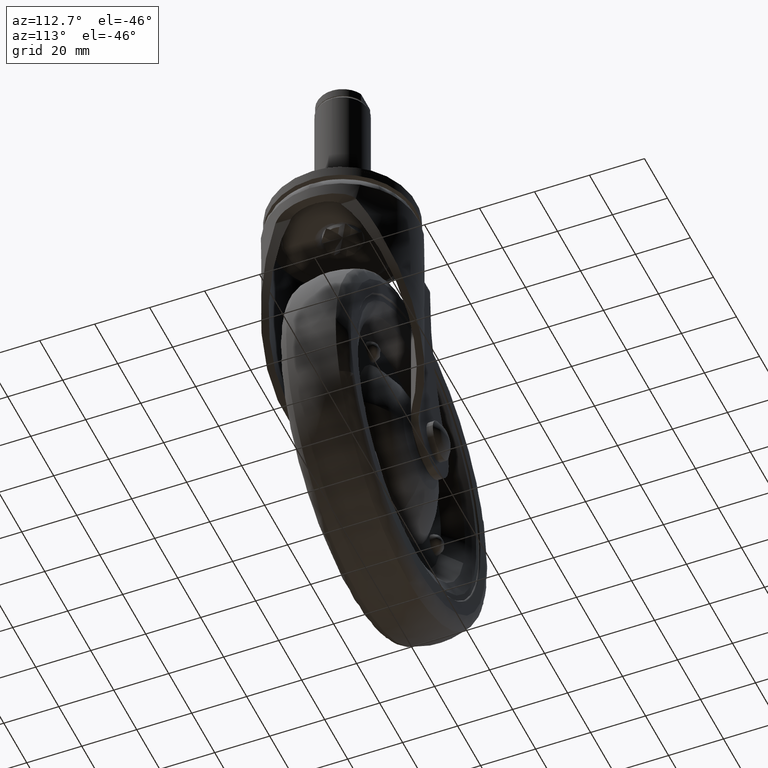
[diagram: clean part render]
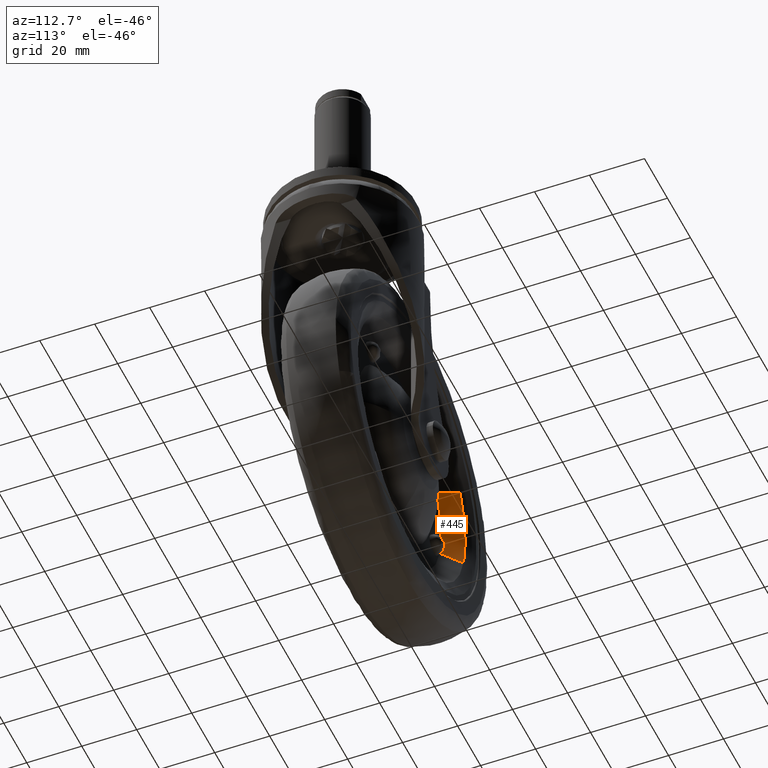
[diagram: same view with one face highlighted and labeled with its STEP entity id]
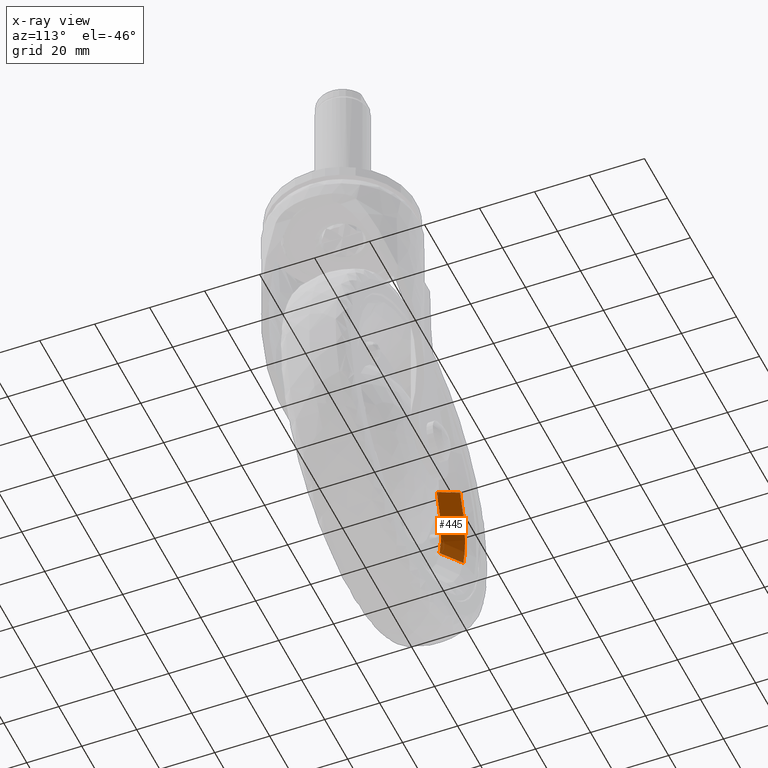
[diagram: x-ray of the same camera — body ghosted, the highlighted face saturated]
A machine part, auxiliary view. The second image highlights one B-rep face of the part: STEP entity #445.
The next image is the same camera in x-ray: the body ghosted, the highlighted face saturated — about 1% of this face is hidden behind the body in this view.
In plain terms, the highlighted face is a freeform B-spline surface patch.
Its self-contained STEP definition (entity closure, byte-faithful):
#258=CARTESIAN_POINT('',(-78.397871471494611,9.949747468713893,-66.401683727044130));
#259=VERTEX_POINT('',#258);
#320=CARTESIAN_POINT('',(-81.220691961662567,9.949747468343521,-97.695054118375822));
#321=VERTEX_POINT('',#320);
#335=CARTESIAN_POINT('',(-75.242446266388981,3.774815623294201,-96.148974657951200));
#336=VERTEX_POINT('',#335);
#337=CARTESIAN_POINT('',(-75.242446266388981,3.774815623294201,-96.148974657951200));
#338=CARTESIAN_POINT('',(-81.220691961662567,9.949747468343521,-97.695054118375822));
#339=QUASI_UNIFORM_CURVE('',1,(#337,#338),.UNSPECIFIED.,.F.,.U.);
#340=EDGE_CURVE('',#336,#321,#339,.T.);
#374=CARTESIAN_POINT('',(-72.792807028006109,3.774815623259724,-68.992636424416162));
#375=VERTEX_POINT('',#374);
#389=CARTESIAN_POINT('',(-72.792807028006109,3.774815623259724,-68.992636424416162));
#390=CARTESIAN_POINT('',(-78.397871471494611,9.949747468713893,-66.401683727044130));
#391=QUASI_UNIFORM_CURVE('',1,(#389,#390),.UNSPECIFIED.,.F.,.U.);
#392=EDGE_CURVE('',#375,#259,#391,.T.);
#397=CARTESIAN_POINT('',(-75.092990124010242,3.620442327090797,-96.110322671120215));
#398=CARTESIAN_POINT('',(-78.703870930169728,3.620442327090797,-82.148082573824851));
#399=CARTESIAN_POINT('',(-72.652680416888160,3.620442327090797,-69.057410241863266));
#400=CARTESIAN_POINT('',(-81.373884509342489,10.107980098581150,-97.734672404649316));
#401=CARTESIAN_POINT('',(-85.564909246922085,10.107980098581146,-81.529182170805768));
#402=CARTESIAN_POINT('',(-78.541501249153356,10.107980098581148,-66.335290563745986));
#410=(BOUNDED_SURFACE()B_SPLINE_SURFACE(2,1,((#397,#400),(#398,#401),(#399,#402)),.UNSPECIFIED.,.F.,.F.,.U.)B_SPLINE_SURFACE_WITH_KNOTS((3,3),(2,2),(0.0,34.082362113930380),(0.0,9.174763902849392),.UNSPECIFIED.)GEOMETRIC_REPRESENTATION_ITEM()RATIONAL_B_SPLINE_SURFACE(((1.0,1.0),(0.871126983722081,0.871126983722081),(0.855662221768731,0.855662221768731)))REPRESENTATION_ITEM('')SURFACE());
#411=CARTESIAN_POINT('',(-78.397871471494625,9.949747468713893,-66.401683727044130));
#412=CARTESIAN_POINT('',(-82.708466845046303,9.949747468305851,-75.726888655259202));
#413=CARTESIAN_POINT('',(-82.708466845046289,9.949747468305851,-86.000188000000009));
#414=CARTESIAN_POINT('',(-82.708466845046289,9.949747468305851,-91.942255494727078));
#415=CARTESIAN_POINT('',(-81.220691961662567,9.949747468343521,-97.695054118375822));
#423=(BOUNDED_CURVE()B_SPLINE_CURVE(2,(#411,#412,#413,#414,#415),.UNSPECIFIED.,.F.,.U.)B_SPLINE_CURVE_WITH_KNOTS((3,2,3),(0.678730602234338,0.750000000000000,0.792726229712765),.UNSPECIFIED.)CURVE()GEOMETRIC_REPRESENTATION_ITEM()RATIONAL_B_SPLINE_CURVE((0.880611827928593,0.916502706742076,1.0,0.949943108206661,0.916996154473076))REPRESENTATION_ITEM(''));
#424=EDGE_CURVE('',#259,#321,#423,.T.);
#425=ORIENTED_EDGE('',*,*,#424,.F.);
#426=ORIENTED_EDGE('',*,*,#392,.F.);
#427=CARTESIAN_POINT('',(-72.792807028006109,3.774815623259724,-68.992636424416162));
#428=CARTESIAN_POINT('',(-76.533535000000001,3.774815623259515,-77.085034780885479));
#429=CARTESIAN_POINT('',(-76.533535000000001,3.774815623259515,-86.000188000000009));
#430=CARTESIAN_POINT('',(-76.533535000000001,3.774815623259515,-91.156704945199380));
#431=CARTESIAN_POINT('',(-75.242446266388981,3.774815623294201,-96.148974657951200));
#439=(BOUNDED_CURVE()B_SPLINE_CURVE(2,(#427,#428,#429,#430,#431),.UNSPECIFIED.,.F.,.U.)B_SPLINE_CURVE_WITH_KNOTS((3,2,3),(0.678730602234653,0.750000000000000,0.792726229712914),.UNSPECIFIED.)CURVE()GEOMETRIC_REPRESENTATION_ITEM()RATIONAL_B_SPLINE_CURVE((0.880611827928910,0.916502706742445,1.0,0.949943108206487,0.916996154472847))REPRESENTATION_ITEM(''));
#440=EDGE_CURVE('',#375,#336,#439,.T.);
#441=ORIENTED_EDGE('',*,*,#440,.T.);
#442=ORIENTED_EDGE('',*,*,#340,.T.);
#443=EDGE_LOOP('',(#425,#426,#441,#442));
#444=FACE_OUTER_BOUND('',#443,.T.);
#445=ADVANCED_FACE('',(#444),#410,.F.);